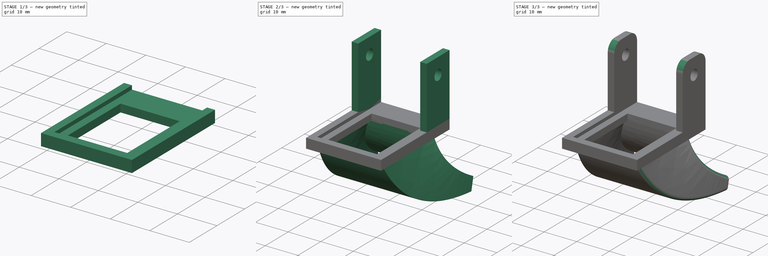
[diagram: build sequence overview — one tinted view per stage of 3, left to right]
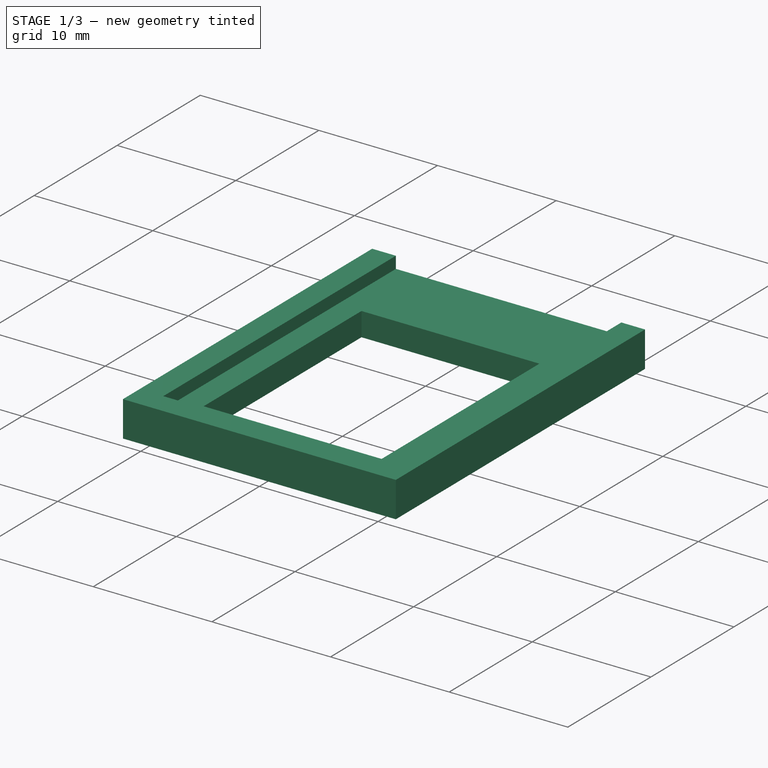
[diagram: stage 1 of 3 — iso view after this stage's code; geometry added in this stage tinted green]
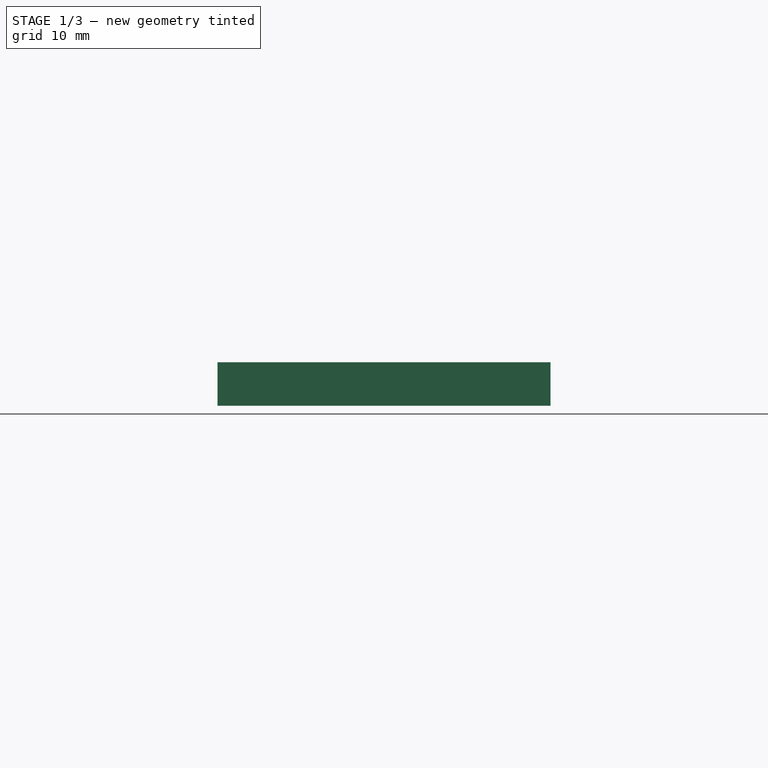
[diagram: stage 1 of 3 — front view after this stage's code; geometry added in this stage tinted green]
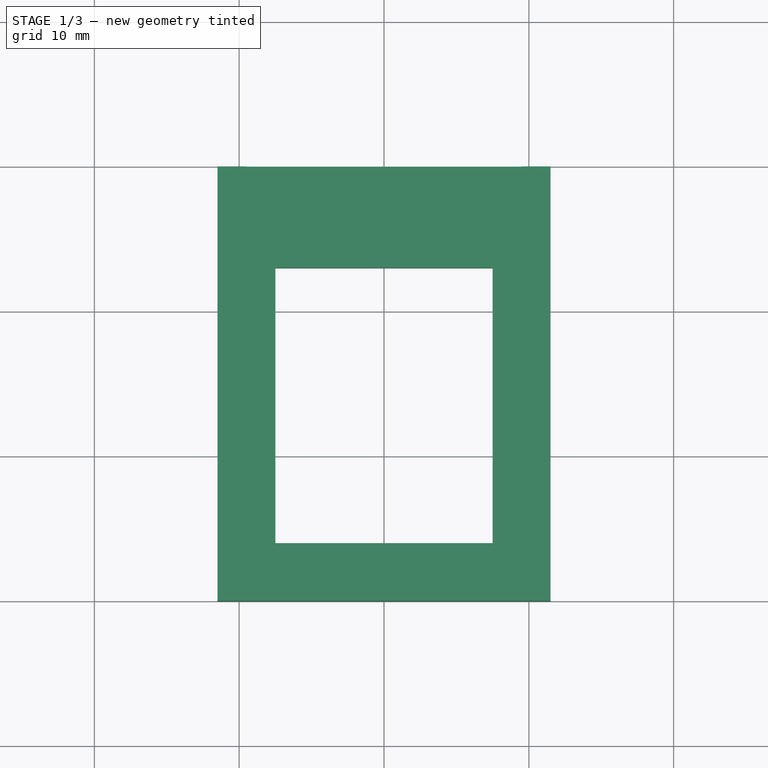
[diagram: stage 1 of 3 — top view after this stage's code; geometry added in this stage tinted green]
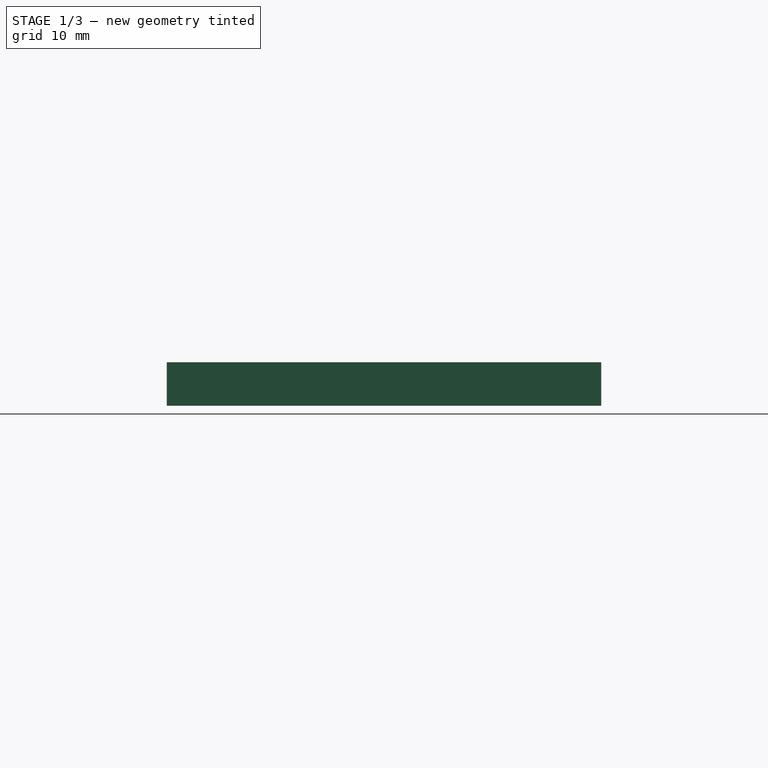
[diagram: stage 1 of 3 — right view after this stage's code; geometry added in this stage tinted green]
FCSTD DOCUMENT  (FreeCAD 0.18R14090 (Git))
Label: HotendExtraFanCasing
License: All rights reserved
LicenseURL: http://en.wikipedia.org/wiki/All_rights_reserved
objects: Sketcher::SketchObject×6, PartDesign::Pad×3, PartDesign::Fillet×2, PartDesign::Pocket×1, PartDesign::Plane×1, PartDesign::AdditivePipe×1, PartDesign::Body×1, App::Part×1
note: 20 computed .brp shape members not serialized (recipe doc carries the construction recipe); baked Part::Feature solids carry a one-line shape summary decoded from their .brp

FEATURE [Sketcher::SketchObject] Sketch  label="CasingBaseSketch"
  MapMode = 5
  Support = -> [XY_Plane001]
  sketch-geometry (8):
    g0: LineSegment StartX=-11.5 StartY=-10 StartZ=0 EndX=11.5 EndY=-10 EndZ=0
    g1: LineSegment StartX=11.5 StartY=-10 StartZ=0 EndX=11.5 EndY=-40 EndZ=0
    g2: LineSegment StartX=11.5 StartY=-40 StartZ=0 EndX=-11.5 EndY=-40 EndZ=0
    g3: LineSegment StartX=-11.5 StartY=-40 StartZ=0 EndX=-11.5 EndY=-10 EndZ=0
    g4: LineSegment StartX=-7.5 StartY=-17 StartZ=0 EndX=7.5 EndY=-17 EndZ=0
    g5: LineSegment StartX=7.5 StartY=-17 StartZ=0 EndX=7.5 EndY=-36 EndZ=0
    g6: LineSegment StartX=7.5 StartY=-36 StartZ=0 EndX=-7.5 EndY=-36 EndZ=0
    g7: LineSegment StartX=-7.5 StartY=-36 StartZ=0 EndX=-7.5 EndY=-17 EndZ=0
  constraints (23):
    c: Coincident(g0,g1)
    c: Coincident(g1,g2)
    c: Coincident(g2,g3)
    c: Coincident(g3,g0)
    c: Horizontal(g2)
    c: Vertical(g1)
    c: Vertical(g3)
    c: Coincident(g4,g5)
    c: Coincident(g5,g6)
    c: Coincident(g6,g7)
    c: Coincident(g7,g4)
    c: Horizontal(g4)
    c: Horizontal(g6)
    c: Vertical(g5)
    c: Vertical(g7)
    c: Distance(g6) = 15
    c: Distance(g7) = 19
    c: Distance(g4,g3) = 4
    c: Distance(g4,g1) = 4
    c: Distance(g6,g2) = 4
    c: Distance(g4,g0) = 7
    c: DistanceY(g-1,g2) = -40
    c: Symmetric(g0,g0,g-2)
FEATURE [PartDesign::Pad] Pad  label="CasingBasePad"
  Length = 2
  Length2 = 100
  Profile = -> Sketch
  Reversed = true
  Type = 0
FEATURE [Sketcher::SketchObject] Sketch001  label="CasingInterfaceSketch"
  ExternalGeometry = -> [Sketch]
  MapMode = 5
  Support = -> [XY_Plane001]
  sketch-geometry (9):
    g0: LineSegment StartX=-11.5 StartY=-40 StartZ=0 EndX=11.5 EndY=-40 EndZ=0
    g1: LineSegment StartX=-11.5 StartY=-40 StartZ=0 EndX=-11.5 EndY=-10 EndZ=0
    g2: LineSegment StartX=11.5 StartY=-40 StartZ=0 EndX=11.5 EndY=-10 EndZ=0
    g3: LineSegment StartX=-11.5 StartY=-10 StartZ=0 EndX=-9.5 EndY=-10 EndZ=0
    g4: LineSegment StartX=-9.5 StartY=-10 StartZ=0 EndX=-9.5 EndY=-38 EndZ=0
    g5: LineSegment StartX=-9.5 StartY=-38 StartZ=0 EndX=9.5 EndY=-38 EndZ=0
    g6: LineSegment StartX=9.5 StartY=-38 StartZ=0 EndX=9.5 EndY=-10 EndZ=0
    g7: LineSegment StartX=9.5 StartY=-10 StartZ=0 EndX=11.5 EndY=-10 EndZ=0
    g8: LineSegment [constr] StartX=-9.5 StartY=-38 StartZ=0 EndX=-9.5 EndY=-40 EndZ=0
  constraints (25):
    c: Coincident(g0,g-3)
    c: Coincident(g0,g-3)
    c: Coincident(g1,g0)
    c: Vertical(g1)
    c: Coincident(g2,g0)
    c: Vertical(g2)
    c: Coincident(g3,g1)
    c: Coincident(g4,g3)
    c: Vertical(g4)
    c: Coincident(g5,g4)
    c: Horizontal(g5)
    c: Coincident(g6,g5)
    c: Vertical(g6)
    c: Coincident(g7,g6)
    c: Coincident(g7,g2)
    c: Horizontal(g7)
    c: Equal(g1,g2)
    c: Horizontal(g3)
    c: Coincident(g8,g4)
    c: PointOnObject(g8,g0)
    c: Vertical(g8)
    c: Equal(g3,g7)
    c: Equal(g7,g8)
    c: Distance(g3) = 2
    c: Distance(g1) = 30
FEATURE [PartDesign::Pad] Pad001  label="CasingInterfacePad"
  BaseFeature = -> Pad
  Length = 1
  Length2 = 100
  Profile = -> Sketch001
  Type = 0
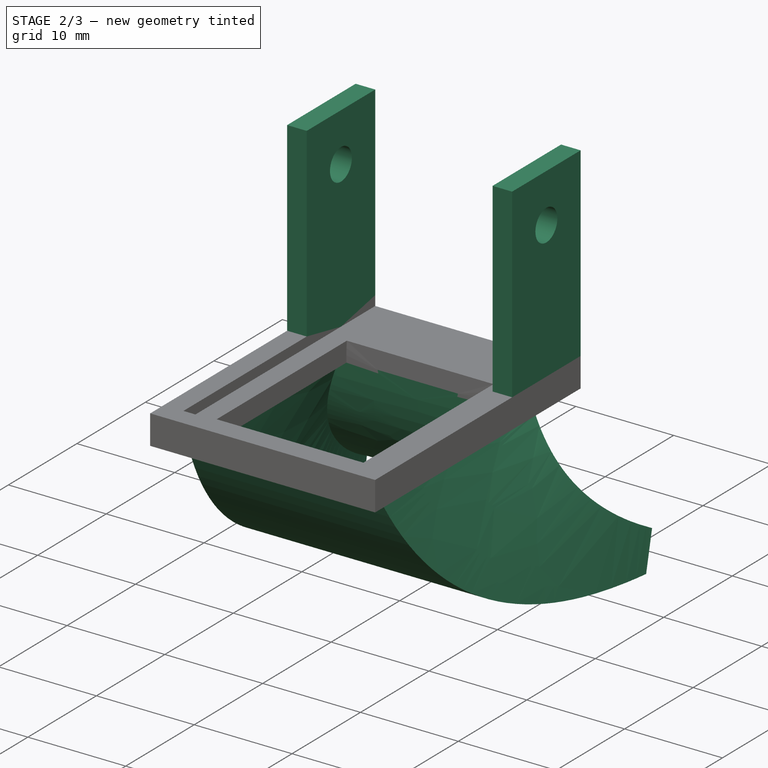
[diagram: stage 2 of 3 — iso view after this stage's code; geometry added in this stage tinted green]
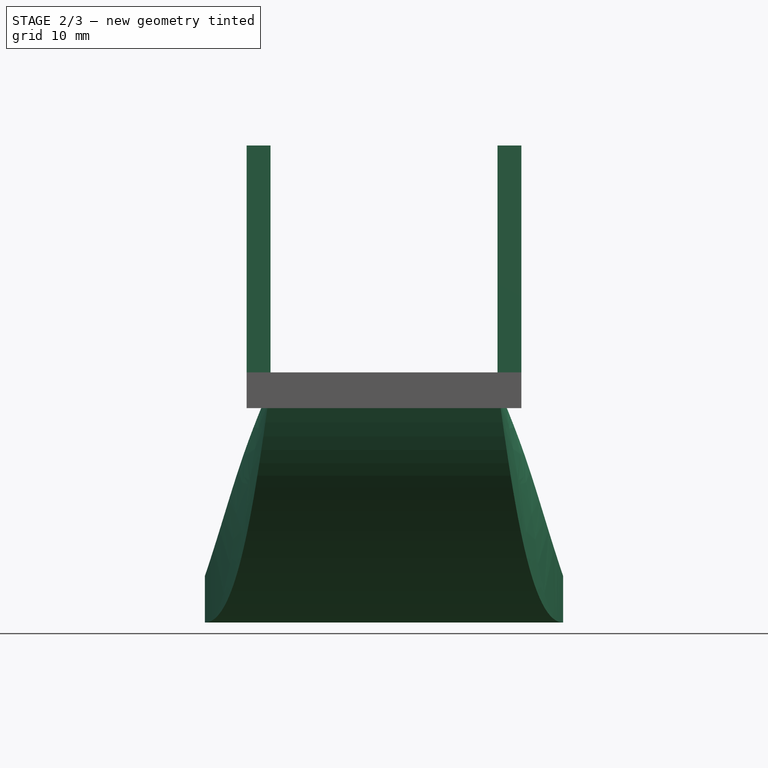
[diagram: stage 2 of 3 — front view after this stage's code; geometry added in this stage tinted green]
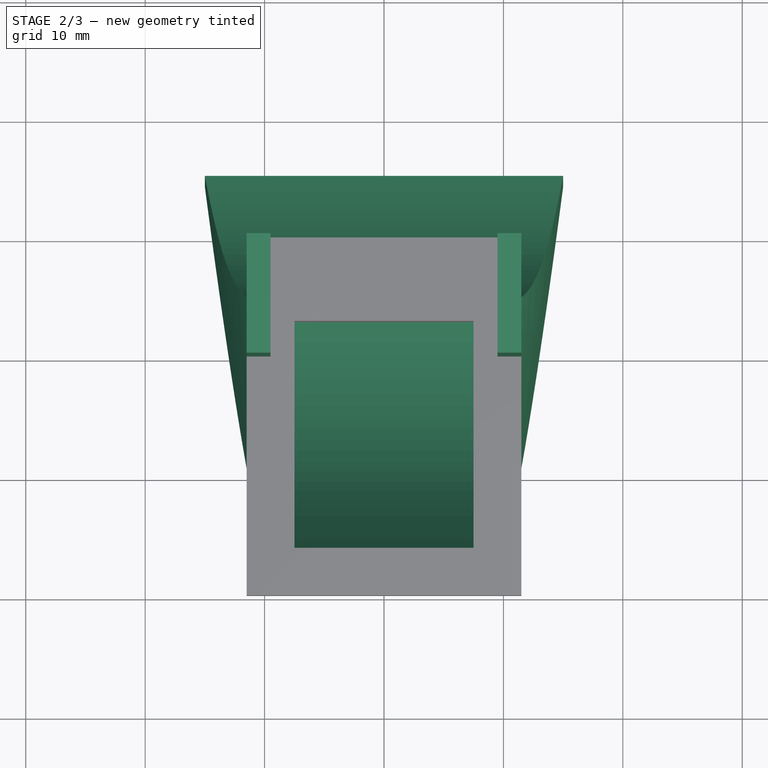
[diagram: stage 2 of 3 — top view after this stage's code; geometry added in this stage tinted green]
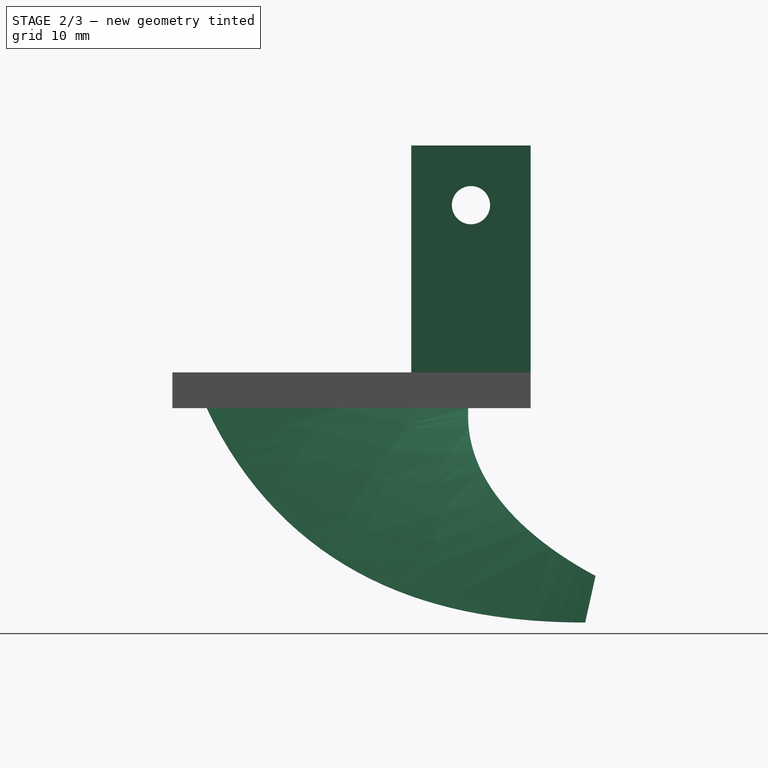
[diagram: stage 2 of 3 — right view after this stage's code; geometry added in this stage tinted green]
FEATURE [Sketcher::SketchObject] Sketch002  label="CasingClippingSketch"
  ExternalGeometry = -> [Sketch001]
  MapMode = 5
  Placement = pos=(0,0,0) rot=(0.57735,0.57735,0.57735;2.0944rad)
  Support = -> [YZ_Plane001]
  sketch-geometry (8):
    g0: Circle CenterX=-15 CenterY=15 CenterZ=0 NormalX=0 NormalY=0 NormalZ=1 AngleXU=0 Radius=1.6
    g1: LineSegment StartX=-10 StartY=-2e-12 StartZ=0 EndX=-10 EndY=20 EndZ=0
    g2: LineSegment StartX=-10 StartY=20 StartZ=0 EndX=-20 EndY=20 EndZ=0
    g3: LineSegment StartX=-20 StartY=20 StartZ=0 EndX=-20 EndY=0 EndZ=0
    g4: LineSegment StartX=-20 StartY=0 StartZ=0 EndX=-10 EndY=-2e-12 EndZ=0
    g5: LineSegment [constr] StartX=-15 StartY=15 StartZ=0 EndX=-10 EndY=15 EndZ=0
    g6: LineSegment [constr] StartX=-15 StartY=15 StartZ=0 EndX=-20 EndY=15 EndZ=0
    g7: LineSegment [constr] StartX=-15 StartY=15 StartZ=0 EndX=-15 EndY=20 EndZ=0
  constraints (23):
    c: DistanceX(g-2,g0) = -15
    c: DistanceY(g-1,g0) = 15
    c: Coincident(g1,g-3)
    c: Vertical(g1)
    c: Coincident(g2,g1)
    c: Horizontal(g2)
    c: Coincident(g3,g2)
    c: PointOnObject(g3,g-1)
    c: Vertical(g3)
    c: Coincident(g4,g3)
    c: Coincident(g4,g1)
    c: Coincident(g5,g0)
    c: PointOnObject(g5,g1)
    c: Horizontal(g5)
    c: Coincident(g6,g0)
    c: PointOnObject(g6,g3)
    c: Horizontal(g6)
    c: Equal(g6,g5)
    c: Coincident(g7,g0)
    c: PointOnObject(g7,g2)
    c: Vertical(g7)
    c: Equal(g7,g6)
    c: Radius(g0) = 1.6
FEATURE [PartDesign::Pad] Pad002  label="CasingClippingPad"
  BaseFeature = -> Pad001
  Length = 23
  Length2 = 100
  Midplane = true
  Profile = -> Sketch002
  Type = 0
FEATURE [PartDesign::Pocket] Pocket  label="CasingClippingPocket"
  BaseFeature = -> Pad002
  Length = 19
  Length2 = 100
  Midplane = true
  Profile = -> Sketch002
  Type = 0
FEATURE [Sketcher::SketchObject] Sketch003  label="CasingStartSketch"
  ExternalGeometry = -> [Sketch]
  MapMode = 5
  Support = -> [XY_Plane001]
  sketch-geometry (12):
    g0: LineSegment StartX=-7.5 StartY=-36 StartZ=0 EndX=-7.5 EndY=-17 EndZ=0
    g1: LineSegment StartX=-7.5 StartY=-17 StartZ=0 EndX=7.5 EndY=-17 EndZ=0
    g2: LineSegment StartX=7.5 StartY=-17 StartZ=0 EndX=7.5 EndY=-36 EndZ=0
    g3: LineSegment StartX=7.5 StartY=-36 StartZ=0 EndX=-7.5 EndY=-36 EndZ=0
    g4: LineSegment StartX=-9.5 StartY=-15 StartZ=0 EndX=-9.5 EndY=-38 EndZ=0
    g5: LineSegment StartX=-9.5 StartY=-38 StartZ=0 EndX=9.5 EndY=-38 EndZ=0
    g6: LineSegment StartX=9.5 StartY=-38 StartZ=0 EndX=9.5 EndY=-15 EndZ=0
    g7: LineSegment StartX=9.5 StartY=-15 StartZ=0 EndX=-9.5 EndY=-15 EndZ=0
    g8: LineSegment [constr] StartX=-7.5 StartY=-17 StartZ=0 EndX=-7.5 EndY=-15 EndZ=0
    g9: LineSegment [constr] StartX=-7.5 StartY=-17 StartZ=0 EndX=-9.5 EndY=-17 EndZ=0
    g10: LineSegment [constr] StartX=-7.5 StartY=-36 StartZ=0 EndX=-7.5 EndY=-38 EndZ=0
    g11: LineSegment [constr] StartX=7.5 StartY=-36 StartZ=0 EndX=9.5 EndY=-36 EndZ=0
  constraints (32):
    c: Coincident(g0,g-5)
    c: Coincident(g0,g-4)
    c: Coincident(g1,g0)
    c: Coincident(g1,g-6)
    c: Coincident(g2,g1)
    c: Coincident(g2,g-6)
    c: Coincident(g3,g2)
    c: Coincident(g3,g0)
    c: Vertical(g4)
    c: Coincident(g5,g4)
    c: Horizontal(g5)
    c: Coincident(g6,g5)
    c: Vertical(g6)
    c: Coincident(g7,g6)
    c: Coincident(g7,g4)
    c: Horizontal(g7)
    c: Coincident(g8,g0)
    c: PointOnObject(g8,g7)
    c: Vertical(g8)
    c: Coincident(g9,g0)
    c: PointOnObject(g9,g4)
    c: Coincident(g10,g0)
    c: PointOnObject(g10,g5)
    c: Vertical(g10)
    c: Equal(g10,g9)
    c: Equal(g9,g8)
    c: Distance(g8) = 2
    c: Coincident(g11,g2)
    c: PointOnObject(g11,g6)
    c: Horizontal(g11)
    c: Equal(g11,g10)
    c: Horizontal(g9)
FEATURE [Sketcher::SketchObject] Sketch004  label="CasingPathSketch"
  ExternalGeometry = -> [Sketch003]
  MapMode = 5
  Placement = pos=(0,0,0) rot=(0.57735,0.57735,0.57735;2.0944rad)
  Support = -> [YZ_Plane001]
  sketch-geometry (9):
    g0: LineSegment [constr] StartX=-36 StartY=-5e-12 StartZ=0 EndX=-26.5 EndY=0 EndZ=0
    g1: LineSegment [constr] StartX=-17 StartY=-3e-12 StartZ=0 EndX=-26.5 EndY=0 EndZ=0
    g2: LineSegment [constr] StartX=-5 StartY=-18 StartZ=0 EndX=0 EndY=-18 EndZ=0
    g3: Circle [constr] CenterX=-26.5 CenterY=0 CenterZ=0 NormalX=0 NormalY=0 NormalZ=1 AngleXU=0 Radius=2
    g4: Circle [constr] CenterX=-23 CenterY=-14 CenterZ=0 NormalX=0 NormalY=0 NormalZ=1 AngleXU=0 Radius=2
    g5: Circle [constr] CenterX=-5 CenterY=-18 CenterZ=0 NormalX=0 NormalY=0 NormalZ=1 AngleXU=0 Radius=2
    g6: BSplineCurve PolesCount=3 KnotsCount=2 Degree=2 IsPeriodic=0
    g7: GeomPoint [constr] X=-26.5 Y=0 Z=0
    g8: GeomPoint [constr] X=-5 Y=-18 Z=0
  constraints (21):
    c: Coincident(g0,g-3)
    c: Coincident(g1,g-4)
    c: Coincident(g1,g0)
    c: Equal(g1,g0)
    c: Parallel(g1,g0)
    c: PointOnObject(g2,g-2)
    c: Horizontal(g2)
    c: Distance(g2) = 5
    c: Distance(g-1,g2) = 18
    c: Coincident(g6,g0)
    c: Radius(g3) = 2
    c: Equal(g3,g4)
    c: Equal(g3,g5)
    c: InternalAlignment(g3,g6)
    c: InternalAlignment(g4,g6)
    c: InternalAlignment(g5,g6)
    c: InternalAlignment(g7,g6)
    c: InternalAlignment(g8,g6)
    c: Coincident(g6,g2)
    c: DistanceX(g-2,g4) = -23
    c: DistanceY(g-1,g4) = -14
FEATURE [PartDesign::Plane] DatumPlane  label="CasingEndPlane"
  MapMode = 7
  Placement = pos=(1e-12,-5,-18) rot=(1,0,0;1.35213rad)
  Support = -> [Sketch004]
FEATURE [Sketcher::SketchObject] Sketch005  label="CasingEndSketch"
  MapMode = 5
  Placement = pos=(1e-12,-5,-18) rot=(1,0,0;1.35213rad)
  Support = -> [DatumPlane]
  sketch-geometry (12):
    g0: LineSegment StartX=-14 StartY=1 StartZ=0 EndX=14 EndY=1 EndZ=0
    g1: LineSegment StartX=14 StartY=1 StartZ=0 EndX=14 EndY=-1 EndZ=0
    g2: LineSegment StartX=14 StartY=-1 StartZ=0 EndX=-14 EndY=-1 EndZ=0
    g3: LineSegment StartX=-14 StartY=-1 StartZ=0 EndX=-14 EndY=1 EndZ=0
    g4: LineSegment StartX=-15 StartY=2 StartZ=0 EndX=15 EndY=2 EndZ=0
    g5: LineSegment StartX=15 StartY=2 StartZ=0 EndX=15 EndY=-2 EndZ=0
    g6: LineSegment StartX=15 StartY=-2 StartZ=0 EndX=-15 EndY=-2 EndZ=0
    g7: LineSegment StartX=-15 StartY=-2 StartZ=0 EndX=-15 EndY=2 EndZ=0
    g8: LineSegment [constr] StartX=-14 StartY=-1 StartZ=0 EndX=-14 EndY=-2 EndZ=0
    g9: LineSegment [constr] StartX=-14 StartY=-1 StartZ=0 EndX=-15 EndY=-1 EndZ=0
    g10: LineSegment [constr] StartX=14 StartY=1 StartZ=0 EndX=14 EndY=2 EndZ=0
    g11: LineSegment [constr] StartX=14 StartY=-1 StartZ=0 EndX=15 EndY=-1 EndZ=0
  constraints (34):
    c: Coincident(g0,g1)
    c: Coincident(g1,g2)
    c: Coincident(g2,g3)
    c: Coincident(g3,g0)
    c: Horizontal(g0)
    c: Vertical(g1)
    c: Coincident(g4,g5)
    c: Coincident(g5,g6)
    c: Coincident(g6,g7)
    c: Coincident(g7,g4)
    c: Horizontal(g4)
    c: Horizontal(g6)
    c: Vertical(g5)
    c: Vertical(g7)
    c: Symmetric(g2,g1,g-2)
    c: Coincident(g8,g2)
    c: PointOnObject(g8,g6)
    c: Vertical(g8)
    c: Coincident(g9,g2)
    c: PointOnObject(g9,g7)
    c: Horizontal(g9)
    c: Coincident(g10,g0)
    c: PointOnObject(g10,g4)
    c: Vertical(g10)
    c: Equal(g10,g9)
    c: Equal(g9,g8)
    c: Symmetric(g2,g0,g-1)
    c: Distance(g9) = 1
    c: Distance(g3) = 2
    c: Distance(g4) = 30
    c: Coincident(g11,g1)
    c: PointOnObject(g11,g5)
    c: Horizontal(g11)
    c: Equal(g11,g10)
FEATURE [PartDesign::AdditivePipe] AdditivePipe
  AuxilleryCurvelinear = true
  AuxillerySpineTangent = false
  BaseFeature = -> Pocket
  Binormal = (0,0,0)
  Mode = 2
  Profile = -> Sketch003
  Sections = -> [Sketch005]
  Spine = -> Sketch004 [Edge1]
  SpineTangent = false
  Transformation = 1
  Transition = 0
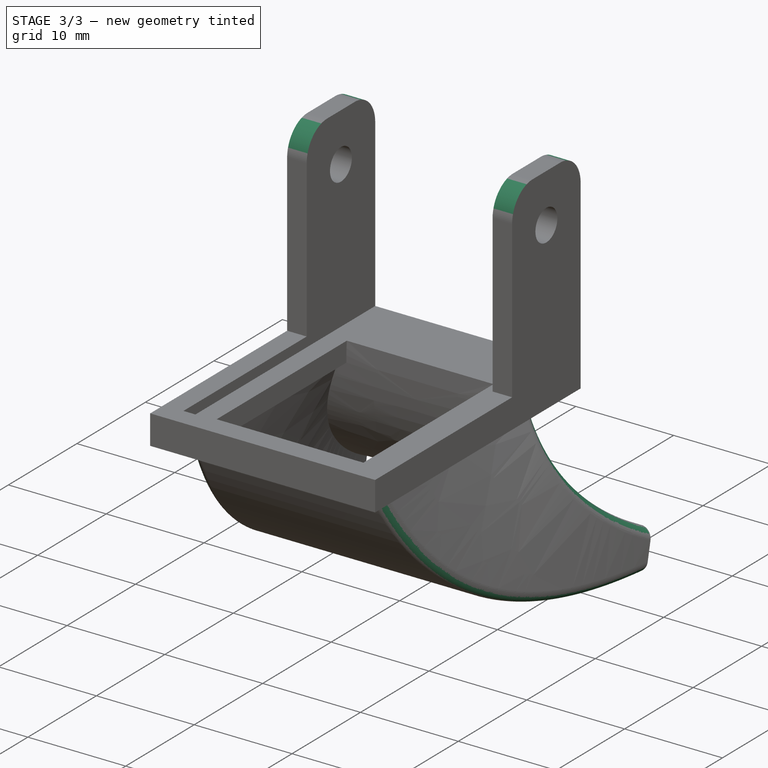
[diagram: stage 3 of 3 — iso view after this stage's code; geometry added in this stage tinted green]
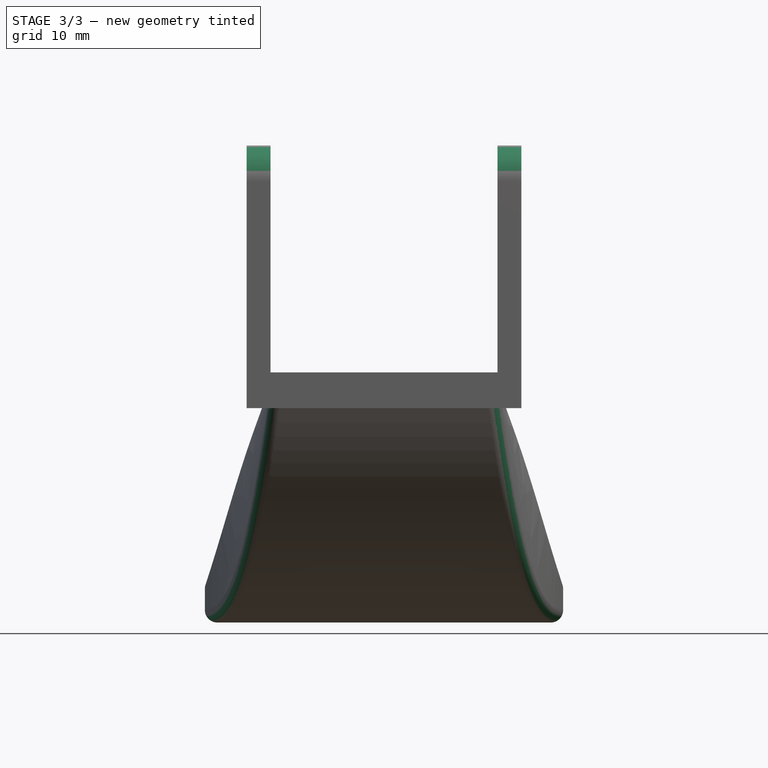
[diagram: stage 3 of 3 — front view after this stage's code; geometry added in this stage tinted green]
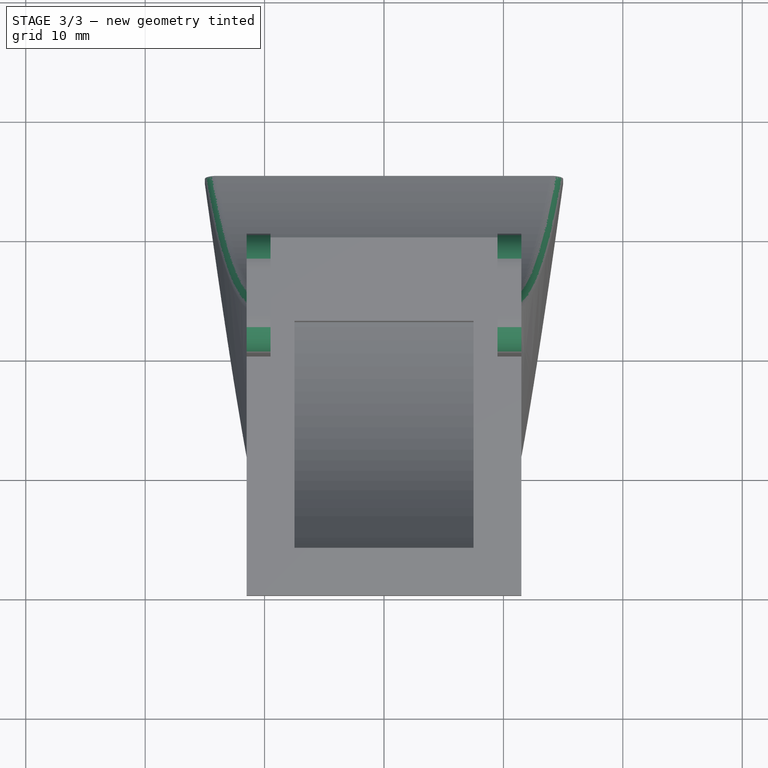
[diagram: stage 3 of 3 — top view after this stage's code; geometry added in this stage tinted green]
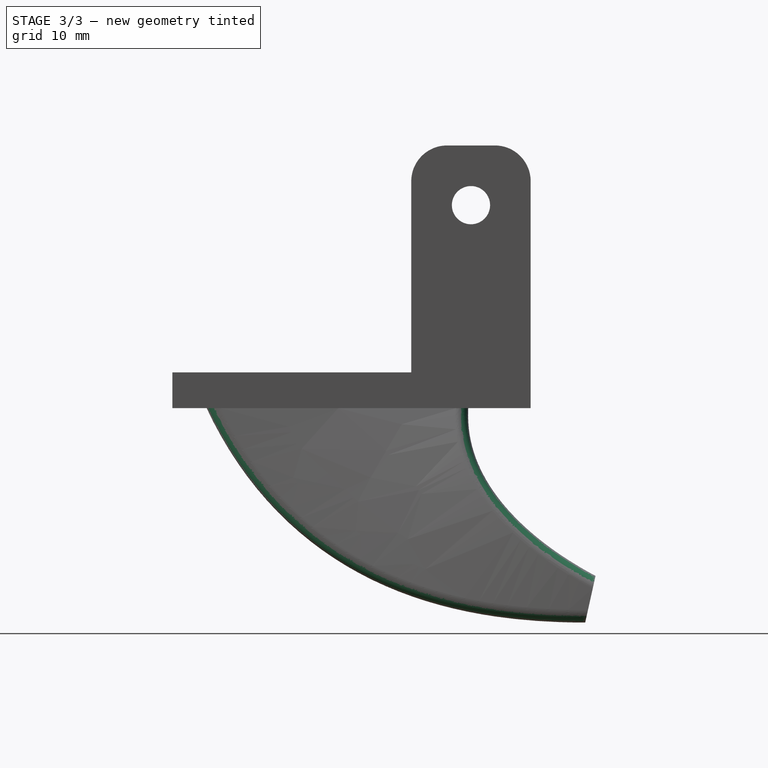
[diagram: stage 3 of 3 — right view after this stage's code; geometry added in this stage tinted green]
FEATURE [PartDesign::Fillet] Fillet  label="CasingFillet"
  Base = -> AdditivePipe [Edge47,Edge45,Edge44,Edge42]
  BaseFeature = -> AdditivePipe
  Radius = 1
FEATURE [PartDesign::Fillet] Fillet001  label="ClippingFillet"
  Base = -> Fillet [Edge120,Edge97,Edge117,Edge80]
  BaseFeature = -> Fillet
  Radius = 3
FEATURE [PartDesign::Body] Body  label="CasingBody"
  Group = -> [Sketch,Pad,Sketch001,Pad001,Sketch002,Pad002,Pocket,Sketch003,Sketch004,DatumPlane,Sketch005,AdditivePipe,Fillet,Fillet001]
  Origin = -> Origin001
  Tip = -> Fillet001
FEATURE [App::Part] Part  label="CasingPart"
  Group = -> [Body]
  License = CC BY 3.0
  LicenseURL = http://creativecommons.org/licenses/by/3.0/
  Origin = -> Origin
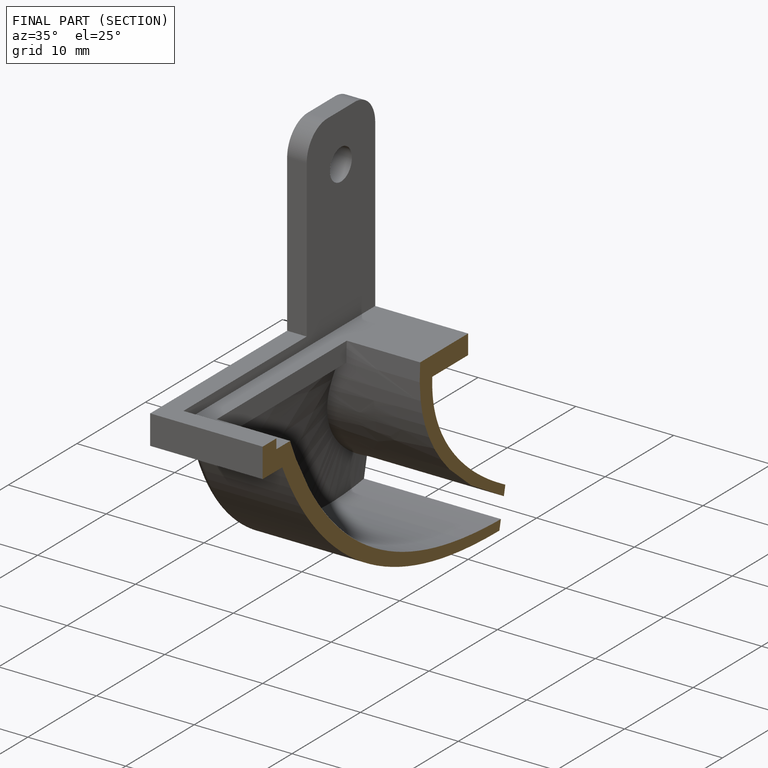
[diagram: finished part — half-section view (interior)]
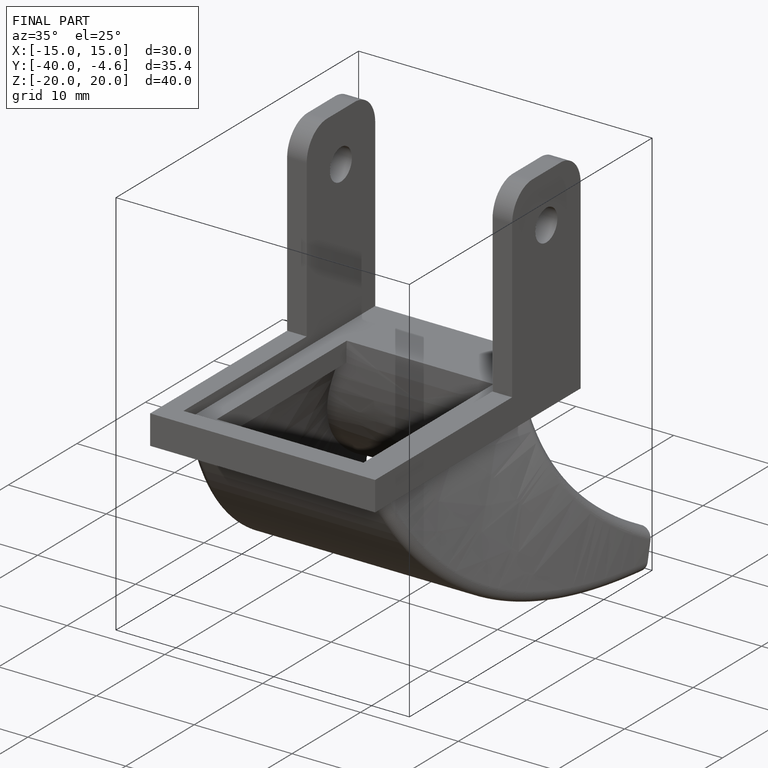
[diagram: finished part — iso view with bounding-box wireframe]
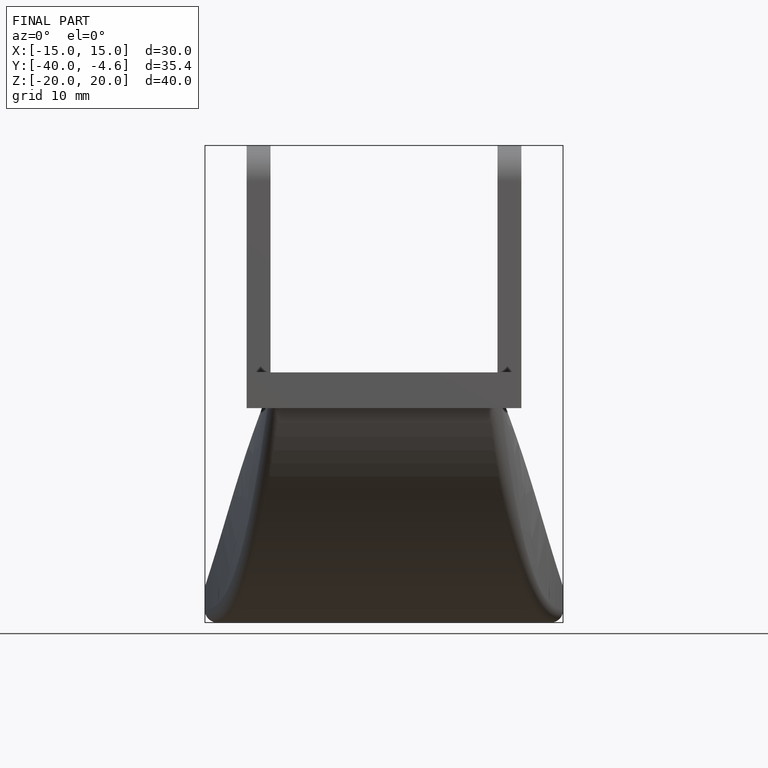
[diagram: finished part — front view with bounding-box wireframe]
